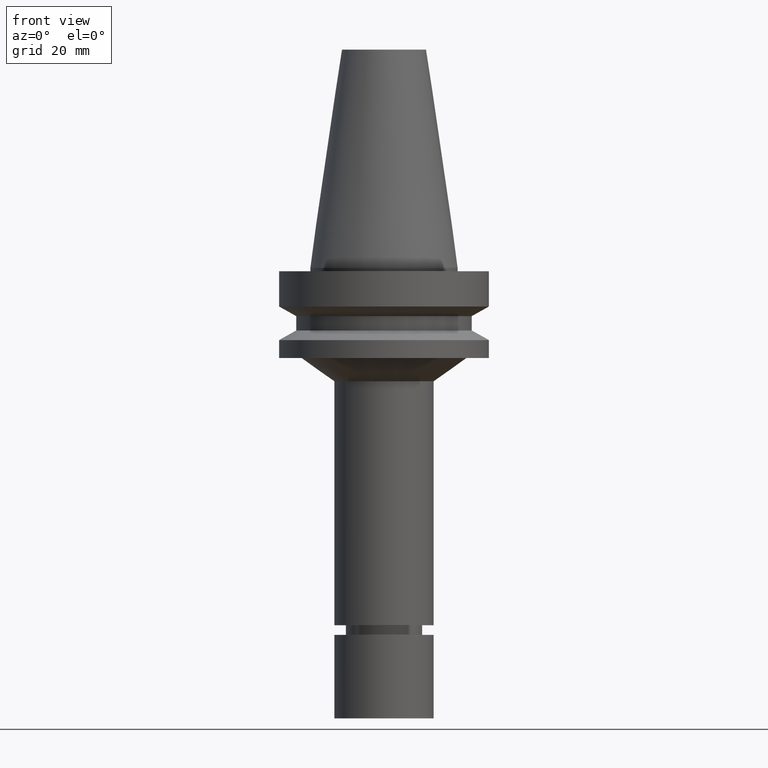
[diagram: clean part render]
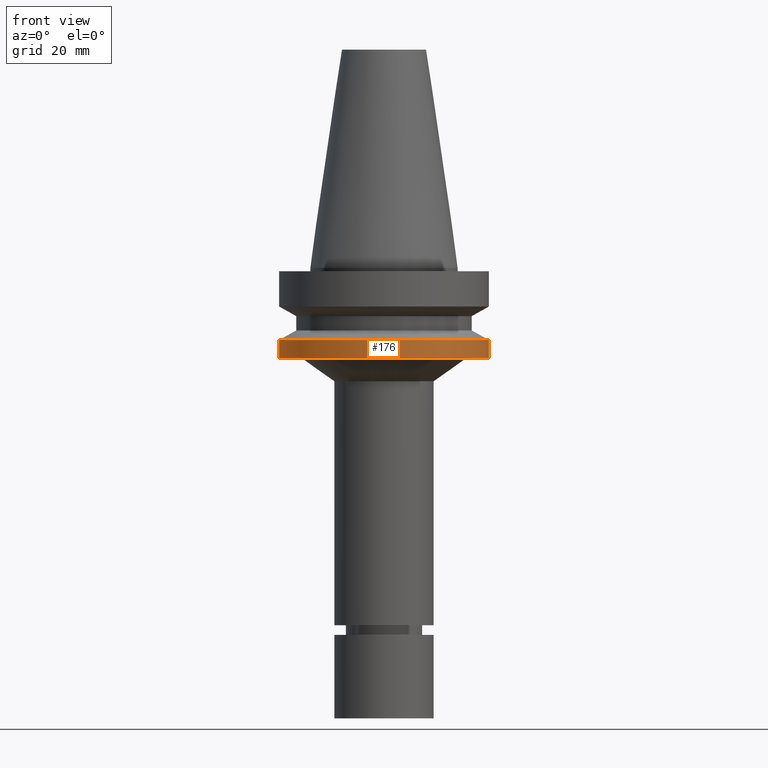
[diagram: same view with one face highlighted and labeled with its STEP entity id]
A machine part, front view. The second image highlights one B-rep face of the part: STEP entity #176.
In plain terms, the highlighted cylindrical surface (bore or boss wall) has radius 31.5 mm, axis along (0, -0, -1).
Its self-contained STEP definition (entity closure, byte-faithful):
#109=EDGE_CURVE('Unnamed[1]',#252,#252,#253,.T.);
#126=EDGE_CURVE('Unnamed[1]',#279,#279,#280,.T.);
#176=ADVANCED_FACE('Unnamed[1]',(#355,#356),#357,.T.);
#252=VERTEX_POINT('',#441);
#253=CIRCLE('',#442,31.5000000000003);
#279=VERTEX_POINT('',#474);
#280=CIRCLE('',#475,31.5000000000006);
#355=FACE_BOUND('',#568,.T.);
#356=FACE_BOUND('',#569,.T.);
#357=CYLINDRICAL_SURFACE('',#570,31.5000000000005);
#441=CARTESIAN_POINT('',(1.65327317884891E-015,31.5000000000004,-26.9999999999998));
#442=AXIS2_PLACEMENT_3D('',#634,#635,#636);
#474=CARTESIAN_POINT('',(1.32473071268174E-015,31.5000000000007,-21.6344943473346));
#475=AXIS2_PLACEMENT_3D('',#666,#667,#668);
#568=EDGE_LOOP('',(#750));
#569=EDGE_LOOP('',(#751));
#570=AXIS2_PLACEMENT_3D('',#752,#753,#754);
#634=CARTESIAN_POINT('',(1.65327317884891E-015,6.83769433029953E-014,-26.9999999999998));
#635=DIRECTION('',(6.12323399573677E-017,-9.41263592148422E-017,-1.0));
#636=DIRECTION('',(9.36424495623501E-034,1.0,-9.41263592148422E-017));
#666=CARTESIAN_POINT('',(1.32473071268174E-015,6.88819788154273E-014,-21.6344943473346));
#667=DIRECTION('',(6.12323399573677E-017,-9.41263592148422E-017,-1.0));
#668=DIRECTION('',(9.36424495623503E-034,1.0,-9.41263592148422E-017));
#750=ORIENTED_EDGE('',*,*,#109,.F.);
#751=ORIENTED_EDGE('',*,*,#126,.T.);
#752=CARTESIAN_POINT('',(1.48900194576533E-015,6.86294610592113E-014,-24.3172471736672));
#753=DIRECTION('',(6.12323399573677E-017,-9.41263592148422E-017,-1.0));
#754=DIRECTION('',(9.36424495623503E-034,1.0,-9.41263592148422E-017));